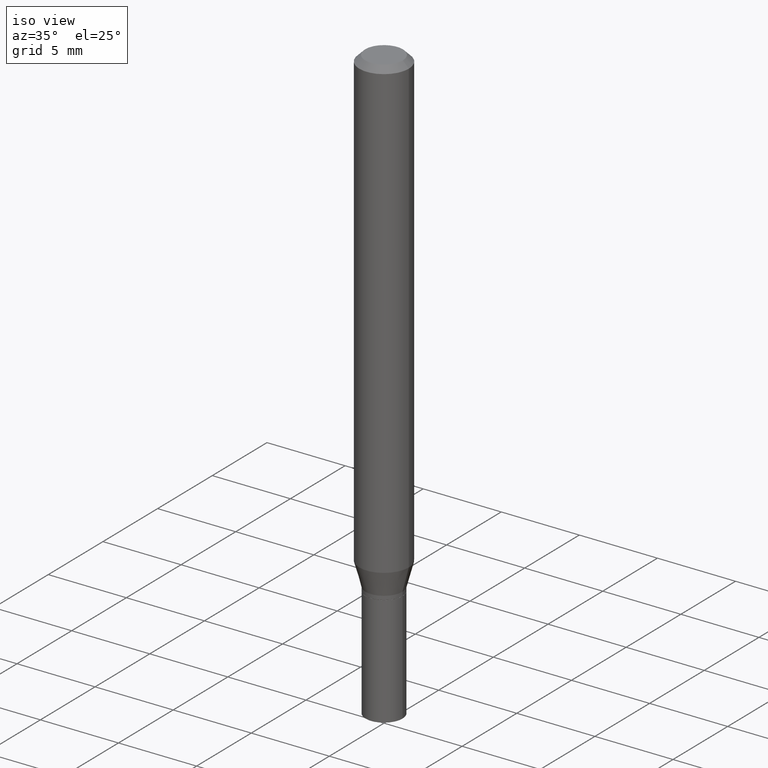
[diagram: clean part render]
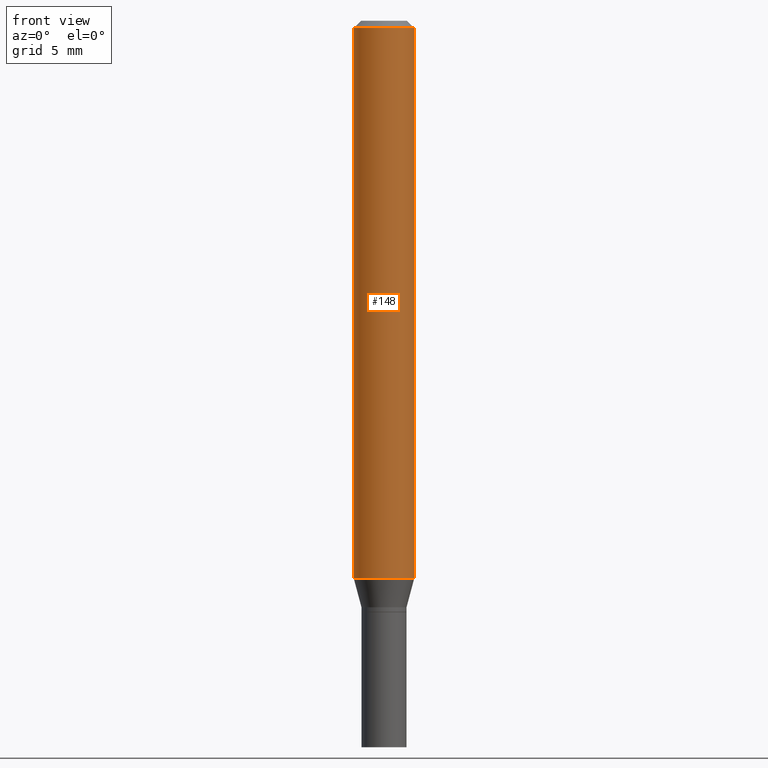
[diagram: tour spotlight — one face highlighted and labeled with its STEP entity id]
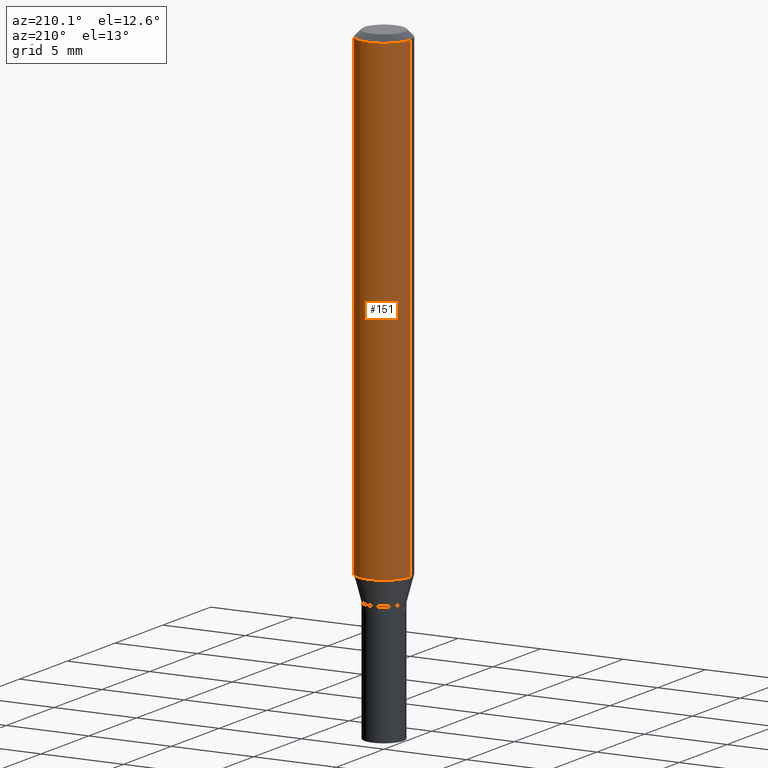
[diagram: tour spotlight — one face highlighted and labeled with its STEP entity id]
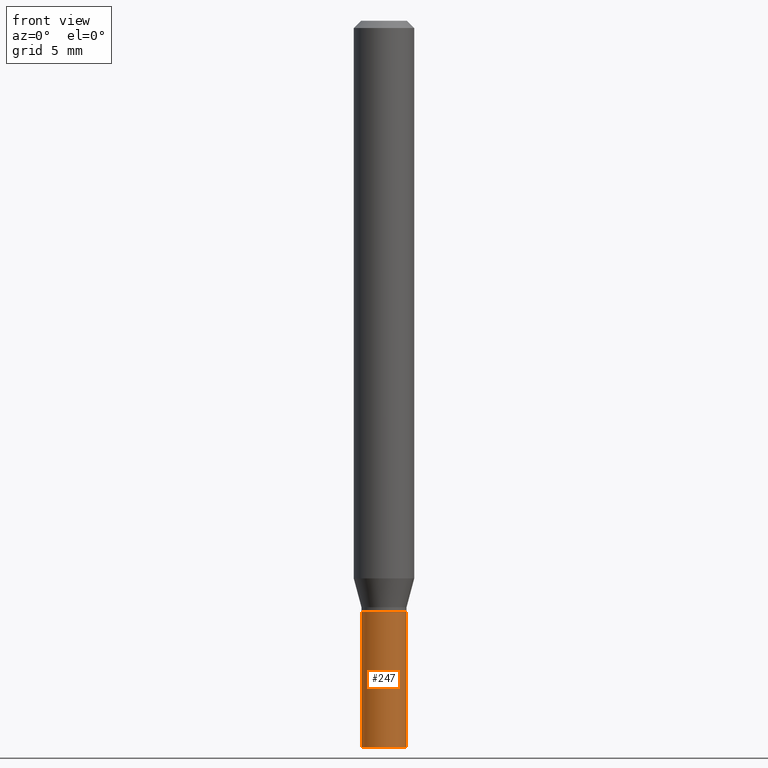
[diagram: tour spotlight — one face highlighted and labeled with its STEP entity id]
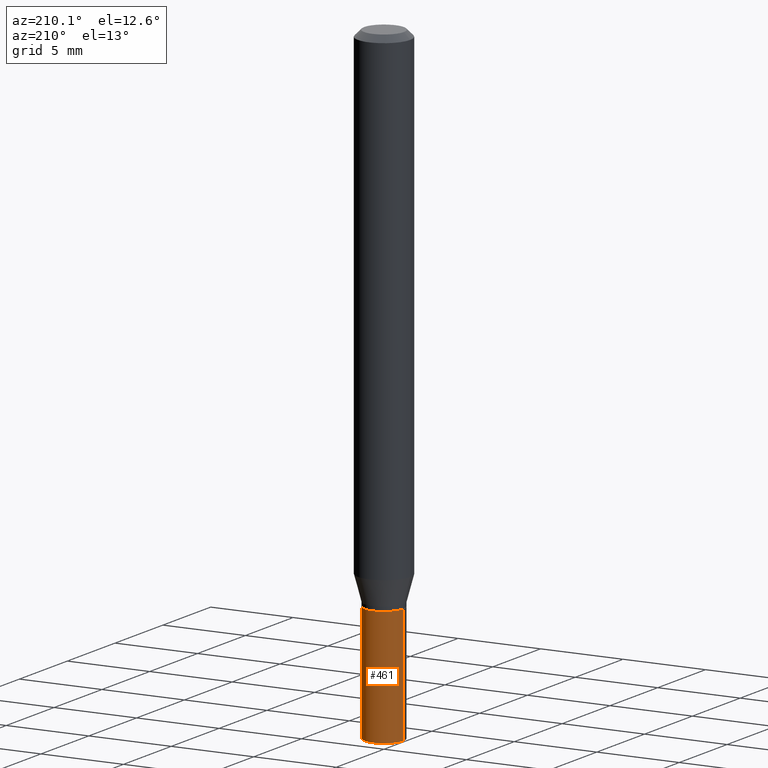
[diagram: tour spotlight — one face highlighted and labeled with its STEP entity id]
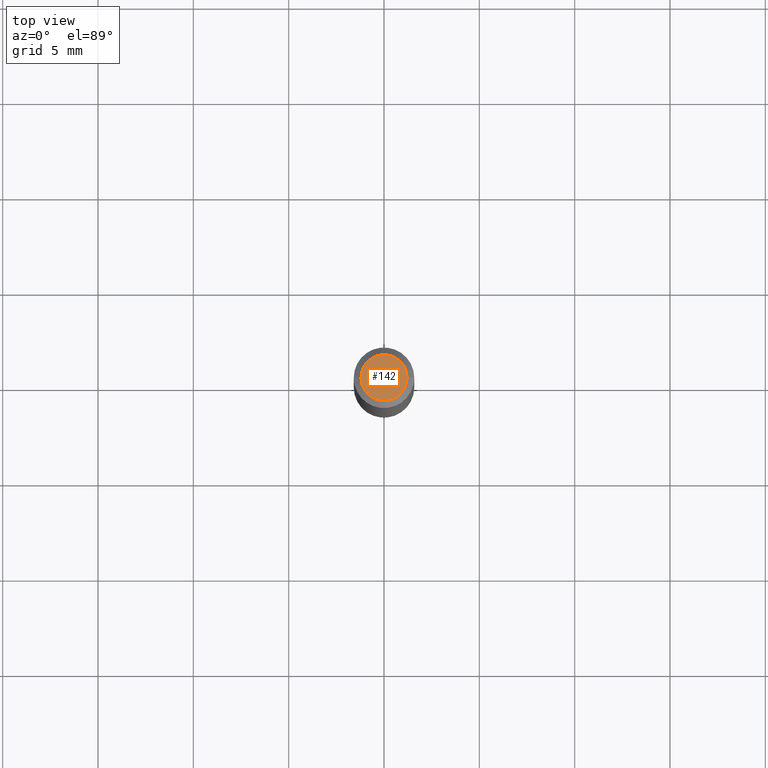
[diagram: tour spotlight — one face highlighted and labeled with its STEP entity id]
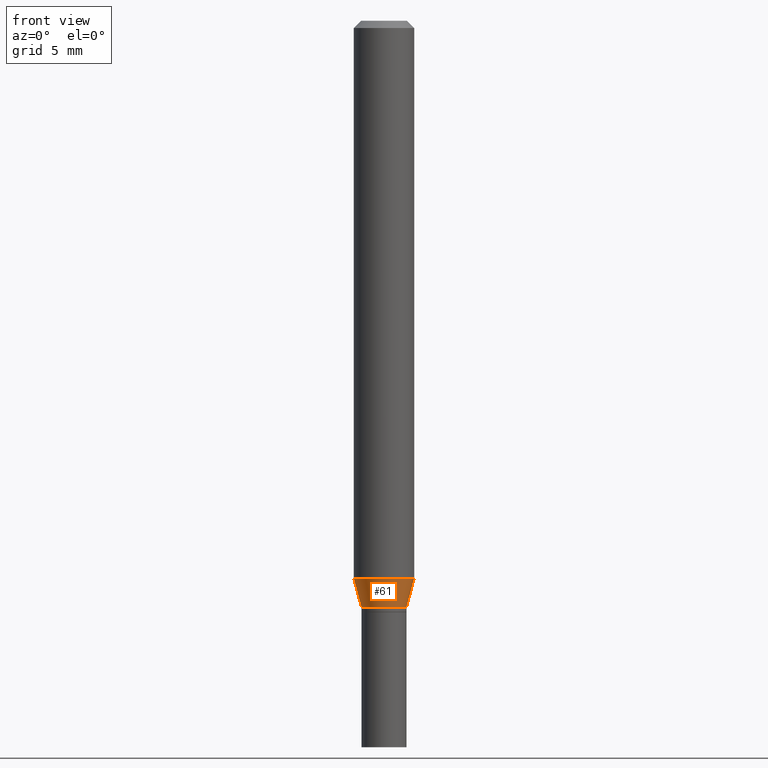
[diagram: tour spotlight — one face highlighted and labeled with its STEP entity id]
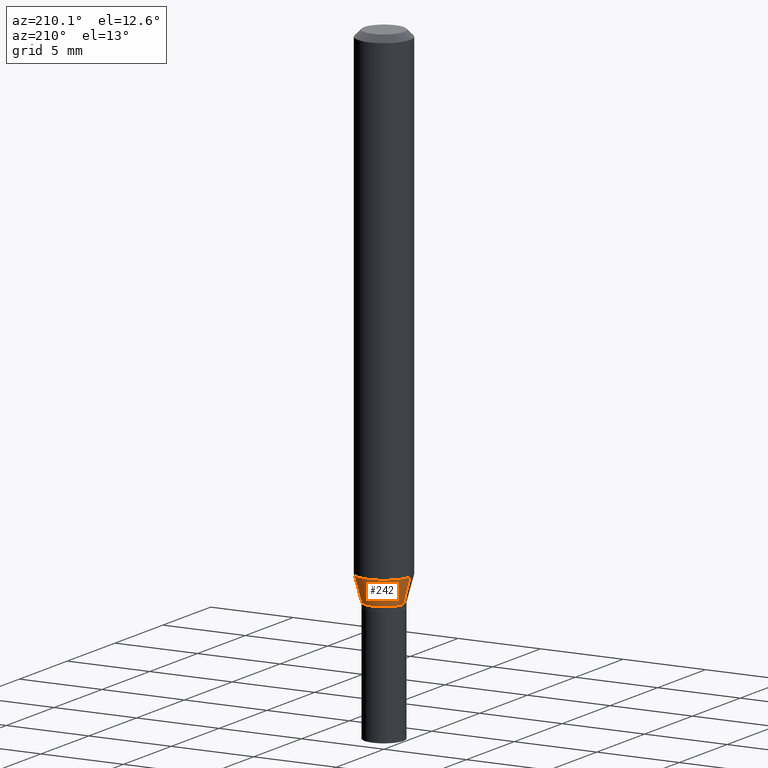
[diagram: tour spotlight — one face highlighted and labeled with its STEP entity id]
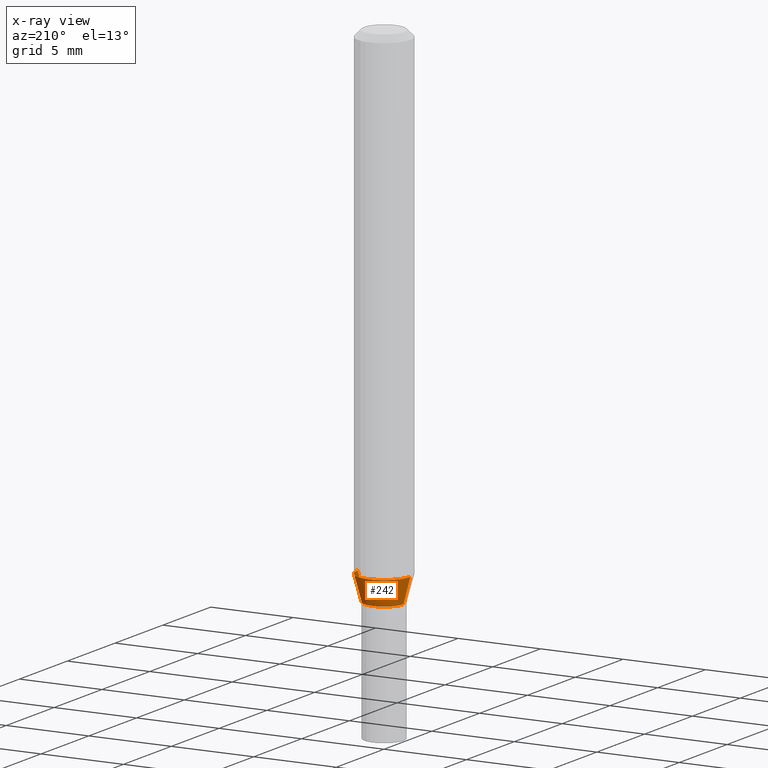
[diagram: x-ray of the same camera — body ghosted, this tour face saturated]
A machine part: a face-by-face anatomy tour. The part has 16 B-rep faces; the first image is the clean iso view, then the 7 largest visible faces are spotlighted one at a time (largest first), each with its STEP entity span.

Face 1 — front view, entity #148. In plain terms, the highlighted cylindrical surface (edge-blend (fillet) strip) has radius 1.5875 mm, axis along (-0, 0, 1).
Definition (entity closure, byte-faithful):
#7 = CARTESIAN_POINT ( 'NONE',  ( -0.06250000000000000000, -1.591945764858856353E-15, -0.01499999999999999944 ) ) ;
#13 = VERTEX_POINT ( 'NONE', #334 ) ;
#22 = VECTOR ( 'NONE', #282, 39.37007874015748143 ) ;
#26 = DIRECTION ( 'NONE',  ( -2.445468806185136597E-29, 3.491481338843145583E-15, 1.000000000000000000 ) ) ;
#42 = DIRECTION ( 'NONE',  ( -2.445468806185136877E-29, 3.491481338843145188E-15, 1.000000000000000000 ) ) ;
#44 = CARTESIAN_POINT ( 'NONE',  ( 0.06250000000000000000, -4.456132896690582134E-15, -1.151287187078898322 ) ) ;
#46 = EDGE_LOOP ( 'NONE', ( #106, #274, #411, #184 ) ) ;
#59 = EDGE_CURVE ( 'NONE', #298, #13, #359, .T. ) ;
#66 = AXIS2_PLACEMENT_3D ( 'NONE', #201, #26, #95 ) ;
#71 = CARTESIAN_POINT ( 'NONE',  ( 0.06250000000000000000, -4.364351673553916694E-16, 3.047610484872459871E-30 ) ) ;
#73 = EDGE_CURVE ( 'NONE', #228, #298, #412, .T. ) ;
#89 = CIRCLE ( 'NONE', #429, 0.06250000000000000000 ) ;
#90 = CYLINDRICAL_SURFACE ( 'NONE', #66, 0.06250000000000000000 ) ;
#95 = DIRECTION ( 'NONE',  ( 1.000000000000000000, -6.982962677686266711E-15, 4.876176775795935793E-29 ) ) ;
#106 = ORIENTED_EDGE ( 'NONE', *, *, #73, .F. ) ;
#148 = ADVANCED_FACE ( 'NONE', ( #449 ), #90, .T. ) ;
#164 = AXIS2_PLACEMENT_3D ( 'NONE', #231, #369, #189 ) ;
#166 = CARTESIAN_POINT ( 'NONE',  ( -0.06250000000000000000, 4.440892098500626162E-16, -3.074334431409316114E-30 ) ) ;
#184 = ORIENTED_EDGE ( 'NONE', *, *, #59, .F. ) ;
#185 = DIRECTION ( 'NONE',  ( -2.445468806185136597E-29, 3.491481338843145583E-15, 1.000000000000000000 ) ) ;
#189 = DIRECTION ( 'NONE',  ( 1.000000000000000000, -6.982962677686266711E-15, 0.000000000000000000 ) ) ;
#201 = CARTESIAN_POINT ( 'NONE',  ( 0.000000000000000000, 0.000000000000000000, 0.000000000000000000 ) ) ;
#228 = VERTEX_POINT ( 'NONE', #370 ) ;
#231 = CARTESIAN_POINT ( 'NONE',  ( 3.668203209277705088E-31, -5.237222008264718399E-17, -0.01499999999999999944 ) ) ;
#274 = ORIENTED_EDGE ( 'NONE', *, *, #281, .T. ) ;
#281 = EDGE_CURVE ( 'NONE', #228, #416, #89, .T. ) ;
#282 = DIRECTION ( 'NONE',  ( -2.445468806185136877E-29, 3.491481338843145188E-15, 1.000000000000000000 ) ) ;
#285 = VECTOR ( 'NONE', #42, 39.37007874015748143 ) ;
#298 = VERTEX_POINT ( 'NONE', #7 ) ;
#302 = LINE ( 'NONE', #71, #285 ) ;
#334 = CARTESIAN_POINT ( 'NONE',  ( 0.06250000000000000000, -4.888073874380388472E-16, -0.01499999999999999944 ) ) ;
#359 = CIRCLE ( 'NONE', #164, 0.06250000000000000000 ) ;
#361 = CARTESIAN_POINT ( 'NONE',  ( 2.815436902962077376E-29, -4.019697729335190464E-15, -1.151287187078898322 ) ) ;
#369 = DIRECTION ( 'NONE',  ( -2.445468806185136597E-29, 3.491481338843145583E-15, 1.000000000000000000 ) ) ;
#370 = CARTESIAN_POINT ( 'NONE',  ( -0.06250000000000000000, -3.575608519485127848E-15, -1.151287187078898322 ) ) ;
#411 = ORIENTED_EDGE ( 'NONE', *, *, #457, .T. ) ;
#412 = LINE ( 'NONE', #166, #22 ) ;
#416 = VERTEX_POINT ( 'NONE', #44 ) ;
#427 = DIRECTION ( 'NONE',  ( 1.000000000000000000, -6.982962677686262766E-15, 0.000000000000000000 ) ) ;
#429 = AXIS2_PLACEMENT_3D ( 'NONE', #361, #185, #427 ) ;
#449 = FACE_OUTER_BOUND ( 'NONE', #46, .T. ) ;
#457 = EDGE_CURVE ( 'NONE', #416, #13, #302, .T. ) ;

Face 2 — auxiliary view, entity #151. In plain terms, the highlighted cylindrical surface (edge-blend (fillet) strip) has radius 1.5875 mm, axis along (-0, 0, 1).
Definition (entity closure, byte-faithful):
#7 = CARTESIAN_POINT ( 'NONE',  ( -0.06250000000000000000, -1.591945764858856353E-15, -0.01499999999999999944 ) ) ;
#13 = VERTEX_POINT ( 'NONE', #334 ) ;
#22 = VECTOR ( 'NONE', #282, 39.37007874015748143 ) ;
#33 = CIRCLE ( 'NONE', #291, 0.06250000000000000000 ) ;
#42 = DIRECTION ( 'NONE',  ( -2.445468806185136877E-29, 3.491481338843145188E-15, 1.000000000000000000 ) ) ;
#44 = CARTESIAN_POINT ( 'NONE',  ( 0.06250000000000000000, -4.456132896690582134E-15, -1.151287187078898322 ) ) ;
#71 = CARTESIAN_POINT ( 'NONE',  ( 0.06250000000000000000, -4.364351673553916694E-16, 3.047610484872459871E-30 ) ) ;
#73 = EDGE_CURVE ( 'NONE', #228, #298, #412, .T. ) ;
#91 = DIRECTION ( 'NONE',  ( 1.000000000000000000, -6.982962677686266711E-15, 0.000000000000000000 ) ) ;
#111 = EDGE_CURVE ( 'NONE', #416, #228, #33, .T. ) ;
#123 = DIRECTION ( 'NONE',  ( -2.445468806185136597E-29, 3.491481338843145583E-15, 1.000000000000000000 ) ) ;
#126 = ORIENTED_EDGE ( 'NONE', *, *, #457, .F. ) ;
#131 = EDGE_CURVE ( 'NONE', #13, #298, #218, .T. ) ;
#133 = DIRECTION ( 'NONE',  ( -2.445468806185136597E-29, 3.491481338843145583E-15, 1.000000000000000000 ) ) ;
#151 = ADVANCED_FACE ( 'NONE', ( #207 ), #387, .T. ) ;
#166 = CARTESIAN_POINT ( 'NONE',  ( -0.06250000000000000000, 4.440892098500626162E-16, -3.074334431409316114E-30 ) ) ;
#207 = FACE_OUTER_BOUND ( 'NONE', #444, .T. ) ;
#218 = CIRCLE ( 'NONE', #278, 0.06250000000000000000 ) ;
#228 = VERTEX_POINT ( 'NONE', #370 ) ;
#230 = ORIENTED_EDGE ( 'NONE', *, *, #131, .F. ) ;
#278 = AXIS2_PLACEMENT_3D ( 'NONE', #417, #311, #91 ) ;
#282 = DIRECTION ( 'NONE',  ( -2.445468806185136877E-29, 3.491481338843145188E-15, 1.000000000000000000 ) ) ;
#285 = VECTOR ( 'NONE', #42, 39.37007874015748143 ) ;
#291 = AXIS2_PLACEMENT_3D ( 'NONE', #423, #133, #421 ) ;
#296 = CARTESIAN_POINT ( 'NONE',  ( 0.000000000000000000, 0.000000000000000000, 0.000000000000000000 ) ) ;
#298 = VERTEX_POINT ( 'NONE', #7 ) ;
#302 = LINE ( 'NONE', #71, #285 ) ;
#311 = DIRECTION ( 'NONE',  ( -2.445468806185136597E-29, 3.491481338843145583E-15, 1.000000000000000000 ) ) ;
#334 = CARTESIAN_POINT ( 'NONE',  ( 0.06250000000000000000, -4.888073874380388472E-16, -0.01499999999999999944 ) ) ;
#340 = AXIS2_PLACEMENT_3D ( 'NONE', #296, #123, #420 ) ;
#370 = CARTESIAN_POINT ( 'NONE',  ( -0.06250000000000000000, -3.575608519485127848E-15, -1.151287187078898322 ) ) ;
#387 = CYLINDRICAL_SURFACE ( 'NONE', #340, 0.06250000000000000000 ) ;
#388 = ORIENTED_EDGE ( 'NONE', *, *, #111, .T. ) ;
#412 = LINE ( 'NONE', #166, #22 ) ;
#416 = VERTEX_POINT ( 'NONE', #44 ) ;
#417 = CARTESIAN_POINT ( 'NONE',  ( 3.668203209277705088E-31, -5.237222008264718399E-17, -0.01499999999999999944 ) ) ;
#420 = DIRECTION ( 'NONE',  ( 1.000000000000000000, -6.982962677686266711E-15, 4.876176775795935793E-29 ) ) ;
#421 = DIRECTION ( 'NONE',  ( 1.000000000000000000, -6.982962677686262766E-15, 0.000000000000000000 ) ) ;
#423 = CARTESIAN_POINT ( 'NONE',  ( 2.815436902962077376E-29, -4.019697729335190464E-15, -1.151287187078898322 ) ) ;
#444 = EDGE_LOOP ( 'NONE', ( #388, #458, #230, #126 ) ) ;
#457 = EDGE_CURVE ( 'NONE', #416, #13, #302, .T. ) ;
#458 = ORIENTED_EDGE ( 'NONE', *, *, #73, .T. ) ;

Face 3 — front view, entity #247. In plain terms, the highlighted cylindrical surface (edge-blend (fillet) strip) has radius 1.1811 mm, axis along (-0, 0, 1).
Definition (entity closure, byte-faithful):
#19 = ORIENTED_EDGE ( 'NONE', *, *, #27, .F. ) ;
#27 = EDGE_CURVE ( 'NONE', #308, #368, #357, .T. ) ;
#29 = VECTOR ( 'NONE', #47, 39.37007874015748143 ) ;
#31 = LINE ( 'NONE', #344, #29 ) ;
#38 = AXIS2_PLACEMENT_3D ( 'NONE', #454, #158, #339 ) ;
#47 = DIRECTION ( 'NONE',  ( -2.445468806185136877E-29, 3.491481338843145188E-15, 1.000000000000000000 ) ) ;
#51 = ORIENTED_EDGE ( 'NONE', *, *, #183, .F. ) ;
#57 = ORIENTED_EDGE ( 'NONE', *, *, #62, .T. ) ;
#62 = EDGE_CURVE ( 'NONE', #235, #67, #154, .T. ) ;
#67 = VERTEX_POINT ( 'NONE', #198 ) ;
#81 = DIRECTION ( 'NONE',  ( 1.000000000000000000, -6.982962677686260400E-15, 0.000000000000000000 ) ) ;
#98 = LINE ( 'NONE', #214, #326 ) ;
#149 = EDGE_CURVE ( 'NONE', #67, #368, #98, .T. ) ;
#154 = CIRCLE ( 'NONE', #38, 0.04649999999999999967 ) ;
#158 = DIRECTION ( 'NONE',  ( -2.445468806185136597E-29, 3.491481338843145583E-15, 1.000000000000000000 ) ) ;
#171 = CARTESIAN_POINT ( 'NONE',  ( 0.04649999999999999967, -4.587806479239892817E-15, -1.221000000000000085 ) ) ;
#181 = DIRECTION ( 'NONE',  ( 1.000000000000000000, -6.982962677686267499E-15, 4.876176775795936353E-29 ) ) ;
#183 = EDGE_CURVE ( 'NONE', #235, #308, #31, .T. ) ;
#198 = CARTESIAN_POINT ( 'NONE',  ( 0.04649999999999999967, -5.561929772777129673E-15, -1.500000000000000222 ) ) ;
#200 = EDGE_LOOP ( 'NONE', ( #51, #57, #203, #19 ) ) ;
#203 = ORIENTED_EDGE ( 'NONE', *, *, #149, .T. ) ;
#214 = CARTESIAN_POINT ( 'NONE',  ( 0.04649999999999999967, -3.247077645124114474E-16, 2.267422200745110326E-30 ) ) ;
#220 = DIRECTION ( 'NONE',  ( -2.445468806185136597E-29, 3.491481338843145583E-15, 1.000000000000000000 ) ) ;
#235 = VERTEX_POINT ( 'NONE', #441 ) ;
#247 = ADVANCED_FACE ( 'NONE', ( #332 ), #466, .T. ) ;
#263 = CARTESIAN_POINT ( 'NONE',  ( -0.04649999999999999967, -4.419757989367653263E-15, -1.221000000000000085 ) ) ;
#308 = VERTEX_POINT ( 'NONE', #263 ) ;
#326 = VECTOR ( 'NONE', #455, 39.37007874015748143 ) ;
#332 = FACE_OUTER_BOUND ( 'NONE', #200, .T. ) ;
#339 = DIRECTION ( 'NONE',  ( 1.000000000000000000, -6.982962677686260400E-15, 0.000000000000000000 ) ) ;
#344 = CARTESIAN_POINT ( 'NONE',  ( -0.04649999999999999967, 3.304023721284465841E-16, -2.287304816968531530E-30 ) ) ;
#357 = CIRCLE ( 'NONE', #363, 0.04649999999999999967 ) ;
#363 = AXIS2_PLACEMENT_3D ( 'NONE', #437, #220, #81 ) ;
#368 = VERTEX_POINT ( 'NONE', #171 ) ;
#397 = DIRECTION ( 'NONE',  ( -2.445468806185136597E-29, 3.491481338843145583E-15, 1.000000000000000000 ) ) ;
#425 = AXIS2_PLACEMENT_3D ( 'NONE', #430, #397, #181 ) ;
#430 = CARTESIAN_POINT ( 'NONE',  ( 0.000000000000000000, 0.000000000000000000, 0.000000000000000000 ) ) ;
#437 = CARTESIAN_POINT ( 'NONE',  ( 2.985917412352052273E-29, -4.263098714727481320E-15, -1.221000000000000085 ) ) ;
#441 = CARTESIAN_POINT ( 'NONE',  ( -0.04649999999999999967, -4.419757989367653263E-15, -1.500000000000000222 ) ) ;
#454 = CARTESIAN_POINT ( 'NONE',  ( 3.668203209277704895E-29, -5.237222008264718177E-15, -1.500000000000000222 ) ) ;
#455 = DIRECTION ( 'NONE',  ( -2.445468806185136877E-29, 3.491481338843145188E-15, 1.000000000000000000 ) ) ;
#466 = CYLINDRICAL_SURFACE ( 'NONE', #425, 0.04649999999999999967 ) ;

Face 4 — auxiliary view, entity #461. In plain terms, the highlighted cylindrical surface (edge-blend (fillet) strip) has radius 1.1811 mm, axis along (-0, 0, 1).
Definition (entity closure, byte-faithful):
#29 = VECTOR ( 'NONE', #47, 39.37007874015748143 ) ;
#31 = LINE ( 'NONE', #344, #29 ) ;
#47 = DIRECTION ( 'NONE',  ( -2.445468806185136877E-29, 3.491481338843145188E-15, 1.000000000000000000 ) ) ;
#67 = VERTEX_POINT ( 'NONE', #198 ) ;
#70 = DIRECTION ( 'NONE',  ( -2.445468806185136597E-29, 3.491481338843145583E-15, 1.000000000000000000 ) ) ;
#75 = CIRCLE ( 'NONE', #284, 0.04649999999999999967 ) ;
#93 = CIRCLE ( 'NONE', #401, 0.04649999999999999967 ) ;
#98 = LINE ( 'NONE', #214, #326 ) ;
#104 = CARTESIAN_POINT ( 'NONE',  ( 3.668203209277704895E-29, -5.237222008264718177E-15, -1.500000000000000222 ) ) ;
#110 = EDGE_LOOP ( 'NONE', ( #379, #163, #168, #180 ) ) ;
#141 = AXIS2_PLACEMENT_3D ( 'NONE', #173, #325, #460 ) ;
#149 = EDGE_CURVE ( 'NONE', #67, #368, #98, .T. ) ;
#163 = ORIENTED_EDGE ( 'NONE', *, *, #183, .T. ) ;
#168 = ORIENTED_EDGE ( 'NONE', *, *, #172, .F. ) ;
#171 = CARTESIAN_POINT ( 'NONE',  ( 0.04649999999999999967, -4.587806479239892817E-15, -1.221000000000000085 ) ) ;
#172 = EDGE_CURVE ( 'NONE', #368, #308, #75, .T. ) ;
#173 = CARTESIAN_POINT ( 'NONE',  ( 0.000000000000000000, 0.000000000000000000, 0.000000000000000000 ) ) ;
#180 = ORIENTED_EDGE ( 'NONE', *, *, #149, .F. ) ;
#183 = EDGE_CURVE ( 'NONE', #235, #308, #31, .T. ) ;
#198 = CARTESIAN_POINT ( 'NONE',  ( 0.04649999999999999967, -5.561929772777129673E-15, -1.500000000000000222 ) ) ;
#214 = CARTESIAN_POINT ( 'NONE',  ( 0.04649999999999999967, -3.247077645124114474E-16, 2.267422200745110326E-30 ) ) ;
#221 = DIRECTION ( 'NONE',  ( 1.000000000000000000, -6.982962677686260400E-15, 0.000000000000000000 ) ) ;
#235 = VERTEX_POINT ( 'NONE', #441 ) ;
#263 = CARTESIAN_POINT ( 'NONE',  ( -0.04649999999999999967, -4.419757989367653263E-15, -1.221000000000000085 ) ) ;
#276 = DIRECTION ( 'NONE',  ( 1.000000000000000000, -6.982962677686260400E-15, 0.000000000000000000 ) ) ;
#277 = EDGE_CURVE ( 'NONE', #67, #235, #93, .T. ) ;
#284 = AXIS2_PLACEMENT_3D ( 'NONE', #320, #315, #276 ) ;
#308 = VERTEX_POINT ( 'NONE', #263 ) ;
#315 = DIRECTION ( 'NONE',  ( -2.445468806185136597E-29, 3.491481338843145583E-15, 1.000000000000000000 ) ) ;
#320 = CARTESIAN_POINT ( 'NONE',  ( 2.985917412352052273E-29, -4.263098714727481320E-15, -1.221000000000000085 ) ) ;
#321 = CYLINDRICAL_SURFACE ( 'NONE', #141, 0.04649999999999999967 ) ;
#325 = DIRECTION ( 'NONE',  ( -2.445468806185136597E-29, 3.491481338843145583E-15, 1.000000000000000000 ) ) ;
#326 = VECTOR ( 'NONE', #455, 39.37007874015748143 ) ;
#344 = CARTESIAN_POINT ( 'NONE',  ( -0.04649999999999999967, 3.304023721284465841E-16, -2.287304816968531530E-30 ) ) ;
#367 = FACE_OUTER_BOUND ( 'NONE', #110, .T. ) ;
#368 = VERTEX_POINT ( 'NONE', #171 ) ;
#379 = ORIENTED_EDGE ( 'NONE', *, *, #277, .T. ) ;
#401 = AXIS2_PLACEMENT_3D ( 'NONE', #104, #70, #221 ) ;
#441 = CARTESIAN_POINT ( 'NONE',  ( -0.04649999999999999967, -4.419757989367653263E-15, -1.500000000000000222 ) ) ;
#455 = DIRECTION ( 'NONE',  ( -2.445468806185136877E-29, 3.491481338843145188E-15, 1.000000000000000000 ) ) ;
#460 = DIRECTION ( 'NONE',  ( 1.000000000000000000, -6.982962677686267499E-15, 4.876176775795936353E-29 ) ) ;
#461 = ADVANCED_FACE ( 'NONE', ( #367 ), #321, .T. ) ;

Face 5 — top view, entity #142. In plain terms, the highlighted planar face has unit normal (0, -0, -1).
Definition (entity closure, byte-faithful):
#9 = ORIENTED_EDGE ( 'NONE', *, *, #176, .T. ) ;
#11 = AXIS2_PLACEMENT_3D ( 'NONE', #354, #236, #447 ) ;
#48 = CIRCLE ( 'NONE', #88, 0.04749999999999999362 ) ;
#54 = DIRECTION ( 'NONE',  ( 1.000000000000000000, -6.982962677686267499E-15, 4.884662768193073002E-29 ) ) ;
#58 = CARTESIAN_POINT ( 'NONE',  ( -2.121106073929386760E-45, 3.028377322213383622E-31, 8.673617379884936499E-17 ) ) ;
#82 = DIRECTION ( 'NONE',  ( -2.445468806185136597E-29, 3.491481338843145583E-15, 1.000000000000000000 ) ) ;
#84 = CARTESIAN_POINT ( 'NONE',  ( -2.121106073929386760E-45, 3.028377322213383622E-31, 8.673617379884936499E-17 ) ) ;
#88 = AXIS2_PLACEMENT_3D ( 'NONE', #58, #250, #54 ) ;
#142 = ADVANCED_FACE ( 'NONE', ( #206 ), #380, .F. ) ;
#174 = EDGE_LOOP ( 'NONE', ( #9, #182 ) ) ;
#176 = EDGE_CURVE ( 'NONE', #179, #265, #48, .T. ) ;
#179 = VERTEX_POINT ( 'NONE', #358 ) ;
#182 = ORIENTED_EDGE ( 'NONE', *, *, #222, .T. ) ;
#206 = FACE_OUTER_BOUND ( 'NONE', #174, .T. ) ;
#222 = EDGE_CURVE ( 'NONE', #265, #179, #299, .T. ) ;
#232 = DIRECTION ( 'NONE',  ( 1.000000000000000000, -6.982962677686267499E-15, 4.884662768193073002E-29 ) ) ;
#236 = DIRECTION ( 'NONE',  ( 2.438088387897960049E-29, -3.491481338843145188E-15, -1.000000000000000000 ) ) ;
#250 = DIRECTION ( 'NONE',  ( -2.445468806185136597E-29, 3.491481338843145583E-15, 1.000000000000000000 ) ) ;
#265 = VERTEX_POINT ( 'NONE', #432 ) ;
#299 = CIRCLE ( 'NONE', #414, 0.04749999999999999362 ) ;
#354 = CARTESIAN_POINT ( 'NONE',  ( 3.316907271900976096E-16, 0.04749999999999999362, -1.224772766956247324E-16 ) ) ;
#358 = CARTESIAN_POINT ( 'NONE',  ( -0.04749999999999999362, 3.578768372314211985E-16, 8.673617379884694910E-17 ) ) ;
#380 = PLANE ( 'NONE',  #11 ) ;
#414 = AXIS2_PLACEMENT_3D ( 'NONE', #84, #82, #232 ) ;
#432 = CARTESIAN_POINT ( 'NONE',  ( 0.04749999999999999362, -4.035134999187577144E-16, 8.673617379885194112E-17 ) ) ;
#447 = DIRECTION ( 'NONE',  ( -1.000000000000000000, 6.982962677686265922E-15, -4.876176775795935793E-29 ) ) ;

Face 6 — front view, entity #61. In plain terms, the highlighted conical surface has half-angle 15 deg.
Definition (entity closure, byte-faithful):
#3 = CONICAL_SURFACE ( 'NONE', #394, 0.04650000000000006906, 0.2617993877991495744 ) ;
#4 = VECTOR ( 'NONE', #295, 39.37007874015748143 ) ;
#5 = CARTESIAN_POINT ( 'NONE',  ( -0.04650000000000006906, -3.736695024347865517E-15, -1.211000000000000076 ) ) ;
#14 = DIRECTION ( 'NONE',  ( 1.000000000000000000, -6.982962677686259611E-15, 0.000000000000000000 ) ) ;
#25 = VERTEX_POINT ( 'NONE', #5 ) ;
#40 = EDGE_CURVE ( 'NONE', #25, #374, #413, .T. ) ;
#44 = CARTESIAN_POINT ( 'NONE',  ( 0.06250000000000000000, -4.456132896690582134E-15, -1.151287187078898322 ) ) ;
#61 = ADVANCED_FACE ( 'NONE', ( #331 ), #3, .T. ) ;
#65 = ORIENTED_EDGE ( 'NONE', *, *, #258, .T. ) ;
#89 = CIRCLE ( 'NONE', #429, 0.06250000000000000000 ) ;
#114 = DIRECTION ( 'NONE',  ( 1.000000000000000000, -6.982962677686259611E-15, 0.000000000000000000 ) ) ;
#124 = CARTESIAN_POINT ( 'NONE',  ( -0.04650000000000006906, -3.897781529210601608E-15, -1.211000000000000076 ) ) ;
#139 = ORIENTED_EDGE ( 'NONE', *, *, #40, .T. ) ;
#150 = ORIENTED_EDGE ( 'NONE', *, *, #281, .F. ) ;
#185 = DIRECTION ( 'NONE',  ( -2.445468806185136597E-29, 3.491481338843145583E-15, 1.000000000000000000 ) ) ;
#197 = DIRECTION ( 'NONE',  ( -0.2588190451025209060, 5.211531920934547097E-15, 0.9659258262890682012 ) ) ;
#224 = CARTESIAN_POINT ( 'NONE',  ( 2.961462724290200728E-29, -4.228183901339049671E-15, -1.211000000000000076 ) ) ;
#227 = VECTOR ( 'NONE', #197, 39.37007874015748143 ) ;
#228 = VERTEX_POINT ( 'NONE', #370 ) ;
#258 = EDGE_CURVE ( 'NONE', #374, #416, #293, .T. ) ;
#281 = EDGE_CURVE ( 'NONE', #228, #416, #89, .T. ) ;
#293 = LINE ( 'NONE', #392, #4 ) ;
#295 = DIRECTION ( 'NONE',  ( 0.2588190451025209060, 1.565188264969625123E-15, 0.9659258262890682012 ) ) ;
#331 = FACE_OUTER_BOUND ( 'NONE', #360, .T. ) ;
#336 = LINE ( 'NONE', #124, #227 ) ;
#349 = ORIENTED_EDGE ( 'NONE', *, *, #452, .F. ) ;
#360 = EDGE_LOOP ( 'NONE', ( #349, #139, #65, #150 ) ) ;
#361 = CARTESIAN_POINT ( 'NONE',  ( 2.815436902962077376E-29, -4.019697729335190464E-15, -1.151287187078898322 ) ) ;
#366 = DIRECTION ( 'NONE',  ( -2.445468806185136597E-29, 3.491481338843145583E-15, 1.000000000000000000 ) ) ;
#370 = CARTESIAN_POINT ( 'NONE',  ( -0.06250000000000000000, -3.575608519485127848E-15, -1.151287187078898322 ) ) ;
#374 = VERTEX_POINT ( 'NONE', #426 ) ;
#382 = DIRECTION ( 'NONE',  ( -2.445468806185136597E-29, 3.491481338843145583E-15, 1.000000000000000000 ) ) ;
#392 = CARTESIAN_POINT ( 'NONE',  ( 0.04650000000000006906, -4.552891665851461168E-15, -1.211000000000000076 ) ) ;
#394 = AXIS2_PLACEMENT_3D ( 'NONE', #395, #382, #14 ) ;
#395 = CARTESIAN_POINT ( 'NONE',  ( 2.961462724290200728E-29, -4.228183901339049671E-15, -1.211000000000000076 ) ) ;
#413 = CIRCLE ( 'NONE', #439, 0.04650000000000006906 ) ;
#416 = VERTEX_POINT ( 'NONE', #44 ) ;
#426 = CARTESIAN_POINT ( 'NONE',  ( 0.04650000000000006906, -4.552891665851461168E-15, -1.211000000000000076 ) ) ;
#427 = DIRECTION ( 'NONE',  ( 1.000000000000000000, -6.982962677686262766E-15, 0.000000000000000000 ) ) ;
#429 = AXIS2_PLACEMENT_3D ( 'NONE', #361, #185, #427 ) ;
#439 = AXIS2_PLACEMENT_3D ( 'NONE', #224, #366, #114 ) ;
#452 = EDGE_CURVE ( 'NONE', #25, #228, #336, .T. ) ;

Face 7 — auxiliary view, entity #242. An x-ray twin of the same camera follows (body ghosted, this face saturated) — the face is partly hidden behind the body. In plain terms, the highlighted conical surface has half-angle 15 deg.
Definition (entity closure, byte-faithful):
#4 = VECTOR ( 'NONE', #295, 39.37007874015748143 ) ;
#5 = CARTESIAN_POINT ( 'NONE',  ( -0.04650000000000006906, -3.736695024347865517E-15, -1.211000000000000076 ) ) ;
#25 = VERTEX_POINT ( 'NONE', #5 ) ;
#33 = CIRCLE ( 'NONE', #291, 0.06250000000000000000 ) ;
#44 = CARTESIAN_POINT ( 'NONE',  ( 0.06250000000000000000, -4.456132896690582134E-15, -1.151287187078898322 ) ) ;
#111 = EDGE_CURVE ( 'NONE', #416, #228, #33, .T. ) ;
#116 = AXIS2_PLACEMENT_3D ( 'NONE', #323, #459, #288 ) ;
#117 = FACE_OUTER_BOUND ( 'NONE', #191, .T. ) ;
#124 = CARTESIAN_POINT ( 'NONE',  ( -0.04650000000000006906, -3.897781529210601608E-15, -1.211000000000000076 ) ) ;
#133 = DIRECTION ( 'NONE',  ( -2.445468806185136597E-29, 3.491481338843145583E-15, 1.000000000000000000 ) ) ;
#137 = AXIS2_PLACEMENT_3D ( 'NONE', #273, #178, #330 ) ;
#144 = ORIENTED_EDGE ( 'NONE', *, *, #452, .T. ) ;
#178 = DIRECTION ( 'NONE',  ( -2.445468806185136597E-29, 3.491481338843145583E-15, 1.000000000000000000 ) ) ;
#186 = CONICAL_SURFACE ( 'NONE', #137, 0.04650000000000006906, 0.2617993877991495744 ) ;
#191 = EDGE_LOOP ( 'NONE', ( #448, #144, #195, #301 ) ) ;
#195 = ORIENTED_EDGE ( 'NONE', *, *, #111, .F. ) ;
#197 = DIRECTION ( 'NONE',  ( -0.2588190451025209060, 5.211531920934547097E-15, 0.9659258262890682012 ) ) ;
#227 = VECTOR ( 'NONE', #197, 39.37007874015748143 ) ;
#228 = VERTEX_POINT ( 'NONE', #370 ) ;
#242 = ADVANCED_FACE ( 'NONE', ( #117 ), #186, .T. ) ;
#258 = EDGE_CURVE ( 'NONE', #374, #416, #293, .T. ) ;
#273 = CARTESIAN_POINT ( 'NONE',  ( 2.961462724290200728E-29, -4.228183901339049671E-15, -1.211000000000000076 ) ) ;
#288 = DIRECTION ( 'NONE',  ( 1.000000000000000000, -6.982962677686259611E-15, 0.000000000000000000 ) ) ;
#291 = AXIS2_PLACEMENT_3D ( 'NONE', #423, #133, #421 ) ;
#293 = LINE ( 'NONE', #392, #4 ) ;
#295 = DIRECTION ( 'NONE',  ( 0.2588190451025209060, 1.565188264969625123E-15, 0.9659258262890682012 ) ) ;
#301 = ORIENTED_EDGE ( 'NONE', *, *, #258, .F. ) ;
#323 = CARTESIAN_POINT ( 'NONE',  ( 2.961462724290200728E-29, -4.228183901339049671E-15, -1.211000000000000076 ) ) ;
#330 = DIRECTION ( 'NONE',  ( 1.000000000000000000, -6.982962677686259611E-15, 0.000000000000000000 ) ) ;
#336 = LINE ( 'NONE', #124, #227 ) ;
#370 = CARTESIAN_POINT ( 'NONE',  ( -0.06250000000000000000, -3.575608519485127848E-15, -1.151287187078898322 ) ) ;
#371 = EDGE_CURVE ( 'NONE', #374, #25, #450, .T. ) ;
#374 = VERTEX_POINT ( 'NONE', #426 ) ;
#392 = CARTESIAN_POINT ( 'NONE',  ( 0.04650000000000006906, -4.552891665851461168E-15, -1.211000000000000076 ) ) ;
#416 = VERTEX_POINT ( 'NONE', #44 ) ;
#421 = DIRECTION ( 'NONE',  ( 1.000000000000000000, -6.982962677686262766E-15, 0.000000000000000000 ) ) ;
#423 = CARTESIAN_POINT ( 'NONE',  ( 2.815436902962077376E-29, -4.019697729335190464E-15, -1.151287187078898322 ) ) ;
#426 = CARTESIAN_POINT ( 'NONE',  ( 0.04650000000000006906, -4.552891665851461168E-15, -1.211000000000000076 ) ) ;
#448 = ORIENTED_EDGE ( 'NONE', *, *, #371, .T. ) ;
#450 = CIRCLE ( 'NONE', #116, 0.04650000000000006906 ) ;
#452 = EDGE_CURVE ( 'NONE', #25, #228, #336, .T. ) ;
#459 = DIRECTION ( 'NONE',  ( -2.445468806185136597E-29, 3.491481338843145583E-15, 1.000000000000000000 ) ) ;